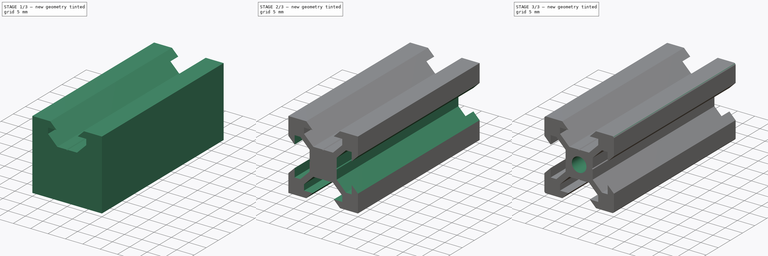
[diagram: build sequence overview — one tinted view per stage of 3, left to right]
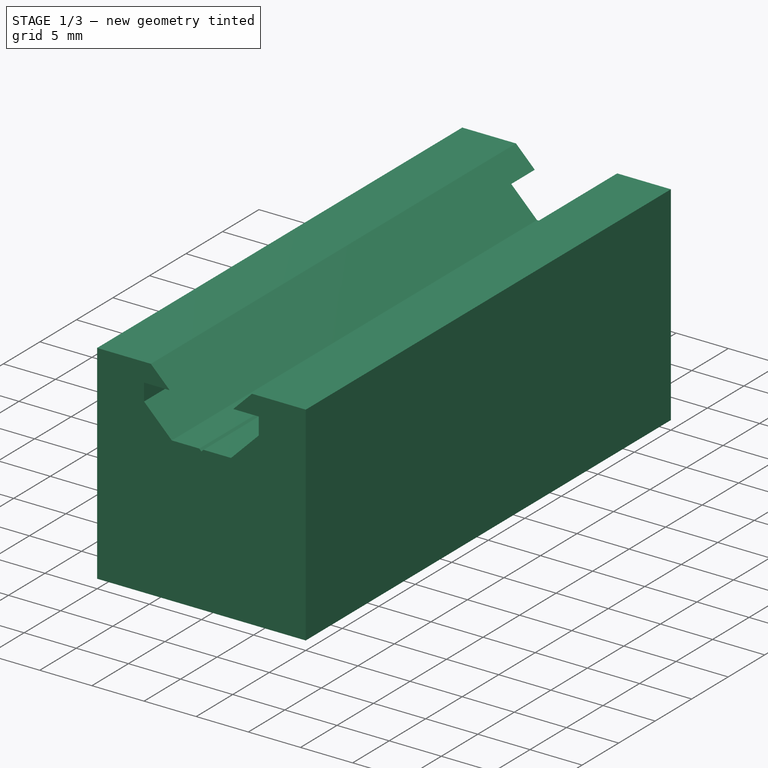
[diagram: stage 1 of 3 — iso view after this stage's code; geometry added in this stage tinted green]
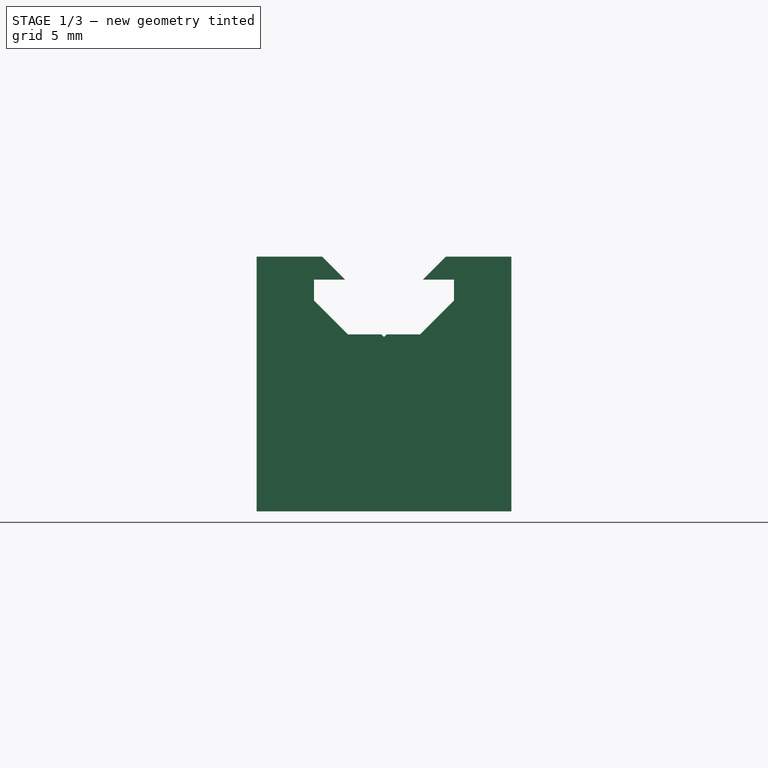
[diagram: stage 1 of 3 — front view after this stage's code; geometry added in this stage tinted green]
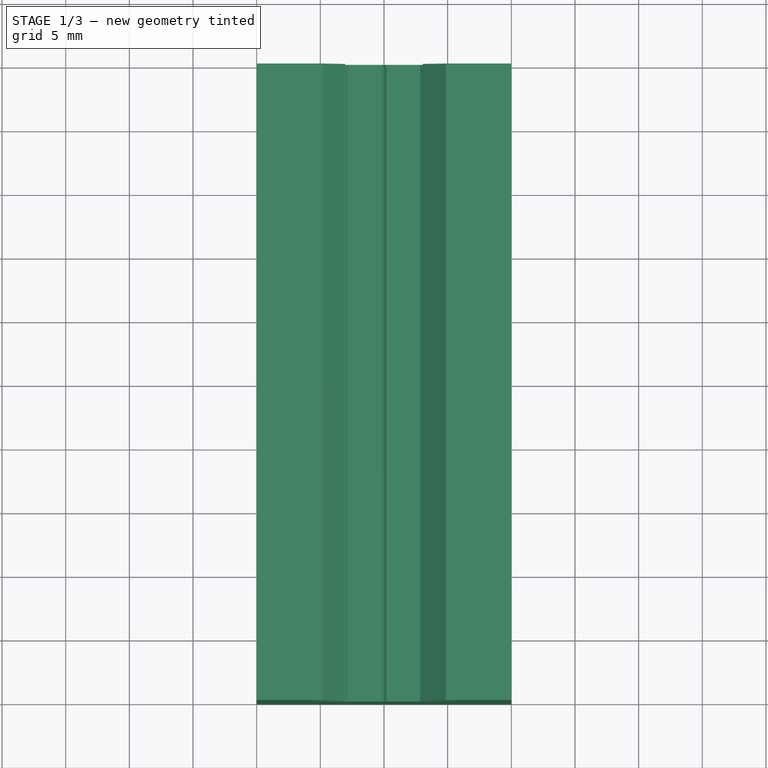
[diagram: stage 1 of 3 — top view after this stage's code; geometry added in this stage tinted green]
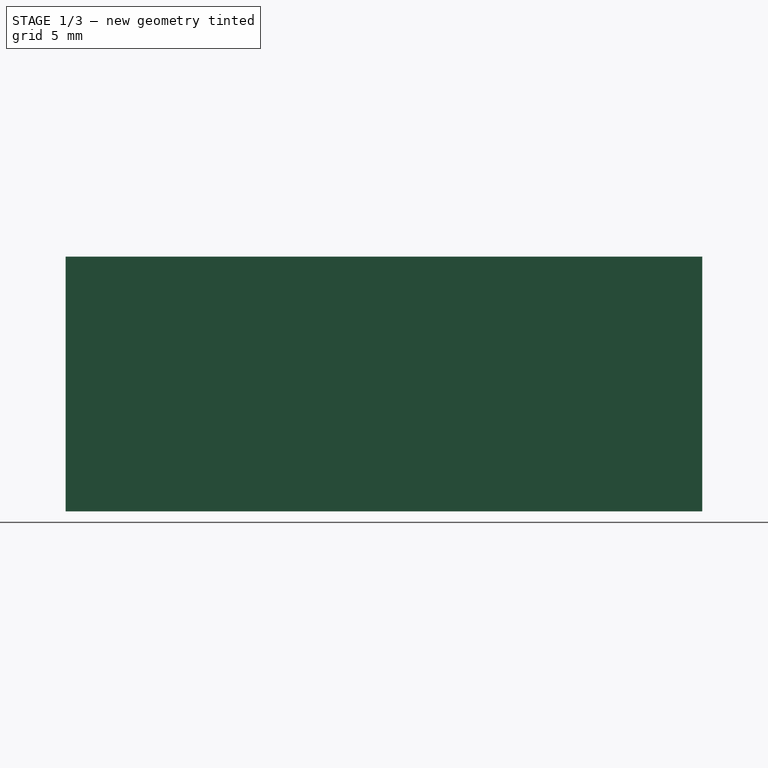
[diagram: stage 1 of 3 — right view after this stage's code; geometry added in this stage tinted green]
FCSTD DOCUMENT  (FreeCAD 2022.111R30764 (Git))
Label: 2020x50_V_slot_profile
License: Creative Commons Attribution
LicenseURL: http://creativecommons.org/licenses/by/4.0/
objects: Sketcher::SketchObject×3, PartDesign::Pocket×2, PartDesign::Pad×1, PartDesign::PolarPattern×1, PartDesign::Fillet×1, PartDesign::Body×1, App::Part×1
note: 19 computed .brp shape members not serialized (recipe doc carries the construction recipe); baked Part::Feature solids carry a one-line shape summary decoded from their .brp

FEATURE [Sketcher::SketchObject] Sketch
  FullyConstrained = true
  MapMode = 5
  Placement = pos=(0,0,0) rot=(1,0,0;1.5708rad)
  Support = -> [XZ_Plane]
  TreeRank = 18
  sketch-geometry (5):
    g0: LineSegment StartX=-10 StartY=10 StartZ=0 EndX=-10 EndY=-10 EndZ=0
    g1: LineSegment StartX=-10 StartY=-10 StartZ=0 EndX=10 EndY=-10 EndZ=0
    g2: LineSegment StartX=10 StartY=-10 StartZ=0 EndX=10 EndY=10 EndZ=0
    g3: LineSegment StartX=10 StartY=10 StartZ=0 EndX=-10 EndY=10 EndZ=0
    g4: GeomPoint [constr] X=-1e-16 Y=-1.03e-14 Z=0
  constraints (12):
    c: Coincident(g0,g1)
    c: Coincident(g1,g2)
    c: Coincident(g2,g3)
    c: Coincident(g3,g0)
    c: Horizontal(g1)
    c: Horizontal(g3)
    c: Vertical(g0)
    c: Vertical(g2)
    c: Symmetric(g1,g0,g4)
    c: Coincident(g4,g-1)
    c: Equal(g2,g1)
    c: DistanceX(g3,g3) = 20
FEATURE [PartDesign::Pad] Pad
  AddSubType = 0
  AlongSketchNormal = false
  CheckUpToFaceLimits = true
  ClaimChildren = false
  Direction = (0,-1,-2e-16)
  Fit = 0
  FitJoin = 0
  InnerFit = 0
  InnerFitJoin = 0
  InnerTaperAngle = 0
  InnerTaperAngleRev = 0
  Length = 50
  Length2 = 100
  Linearize = true
  NewSolid = false
  Placement = pos=(0,0,0) rot=(1,0,0;1.5708rad)
  Profile = -> Sketch
  Suppress = false
  TreeRank = 19
  Type = 0
  _ProfileBasedVersion = 1
FEATURE [Sketcher::SketchObject] Sketch001
  ExternalGeometry = -> [Pad]
  FullyConstrained = true
  MapMode = 5
  Placement = pos=(0,-50,-1.1e-14) rot=(1,0,0;1.5708rad)
  Support = -> [Pad]
  TreeRank = 20
  sketch-geometry (15):
    g0: LineSegment StartX=0 StartY=3.7 StartZ=0 EndX=0.2 EndY=3.9 EndZ=0
    g1: LineSegment StartX=0.2 StartY=3.9 StartZ=0 EndX=2.83934 EndY=3.9 EndZ=0
    g2: LineSegment StartX=2.83934 StartY=3.9 StartZ=0 EndX=5.5 EndY=6.56066 EndZ=0
    g3: LineSegment StartX=5.5 StartY=6.56066 StartZ=0 EndX=5.5 EndY=8.2 EndZ=0
    g4: LineSegment StartX=5.5 StartY=8.2 StartZ=0 EndX=3.05 EndY=8.2 EndZ=0
    g5: LineSegment StartX=3.05 StartY=8.2 StartZ=0 EndX=4.85 EndY=10 EndZ=0
    g6: LineSegment StartX=4.85 StartY=10 StartZ=0 EndX=-4.85 EndY=10 EndZ=0
    g7: LineSegment StartX=-4.85 StartY=10 StartZ=0 EndX=-3.05 EndY=8.2 EndZ=0
    g8: LineSegment StartX=-3.05 StartY=8.2 StartZ=0 EndX=-5.5 EndY=8.2 EndZ=0
    g9: LineSegment StartX=-5.5 StartY=8.2 StartZ=0 EndX=-5.5 EndY=6.56066 EndZ=0
    g10: LineSegment StartX=-5.5 StartY=6.56066 StartZ=0 EndX=-2.83934 EndY=3.9 EndZ=0
    g11: LineSegment StartX=-2.83934 StartY=3.9 StartZ=0 EndX=-0.2 EndY=3.9 EndZ=0
    g12: LineSegment StartX=-0.2 StartY=3.9 StartZ=0 EndX=0 EndY=3.7 EndZ=0
    g13: GeomPoint [constr] X=0 Y=10 Z=0
    g14: LineSegment [constr] StartX=-10 StartY=10 StartZ=0 EndX=0 EndY=0 EndZ=0
  constraints (42):
    c: PointOnObject(g0,g-2)
    c: Coincident(g0,g1)
    c: Horizontal(g1)
    c: Coincident(g1,g2)
    c: Coincident(g2,g3)
    c: Vertical(g3)
    c: Coincident(g3,g4)
    c: Horizontal(g4)
    c: Coincident(g4,g5)
    c: PointOnObject(g5,g-3)
    c: Coincident(g5,g6)
    c: PointOnObject(g6,g-3)
    c: Coincident(g6,g7)
    c: Coincident(g7,g8)
    c: Horizontal(g8)
    c: Coincident(g8,g9)
    c: Coincident(g9,g10)
    c: Coincident(g10,g11)
    c: Horizontal(g11)
    c: Coincident(g11,g12)
    c: Coincident(g12,g0)
    c: Equal(g0,g12)
    c: Equal(g1,g11)
    c: Horizontal(g0,g11)
    c: Equal(g10,g2)
    c: Equal(g3,g9)
    c: Equal(g5,g7)
    c: Horizontal(g4,g7)
    c: Equal(g8,g4)
    c: Symmetric(g5,g6,g13)
    c: PointOnObject(g13,g-2)
    c: DistanceX(g6,g6) = 9.7
    c: DistanceY(g7,g6) = 1.8
    c: DistanceX(g9,g2) = 11
    c: DistanceY(g-1,g0) = 3.7
    c: DistanceY(g-1,g1) = 3.9
    c: Angle(g2) = 0.785398
    c: Parallel(g5,g2)
    c: Parallel(g0,g2)
    c: Coincident(g14,g-3)
    c: Coincident(g14,g-1)
    c: Distance(g10,g14) = 0.75
FEATURE [PartDesign::Pocket] Pocket
  AddSubType = 1
  BaseFeature = -> Pad
  CheckUpToFaceLimits = true
  ClaimChildren = false
  Fit = 0
  FitJoin = 0
  InnerFit = 0
  InnerFitJoin = 0
  InnerTaperAngle = 0
  InnerTaperAngleRev = 0
  Length = 5
  Length2 = 100
  Linearize = true
  NewSolid = false
  Placement = pos=(0,0,0) rot=(1,0,0;1.5708rad)
  Profile = -> Sketch001
  Suppress = false
  TreeRank = 21
  Type = 2
  _ProfileBasedVersion = 1
  _Version = 1
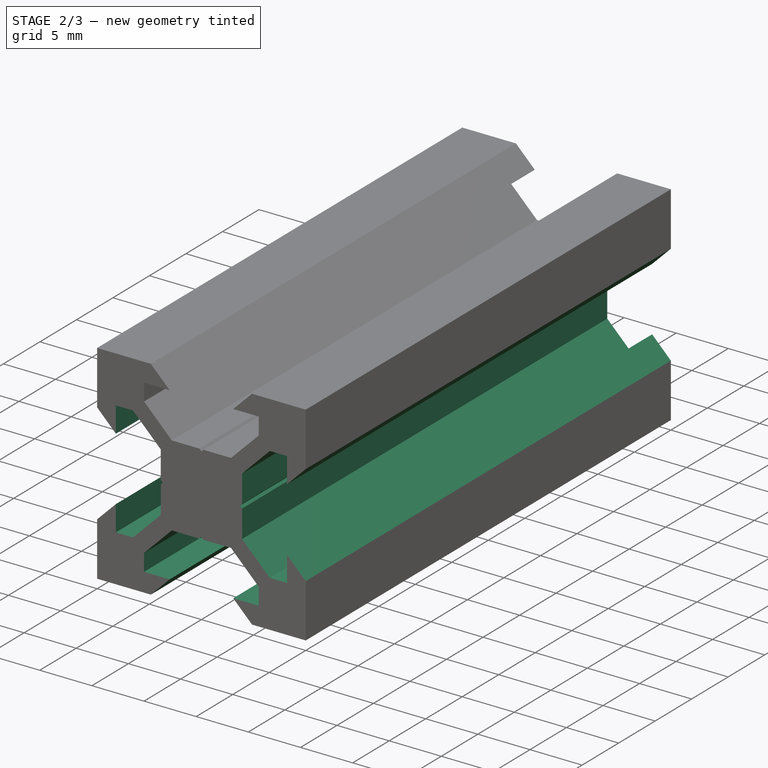
[diagram: stage 2 of 3 — iso view after this stage's code; geometry added in this stage tinted green]
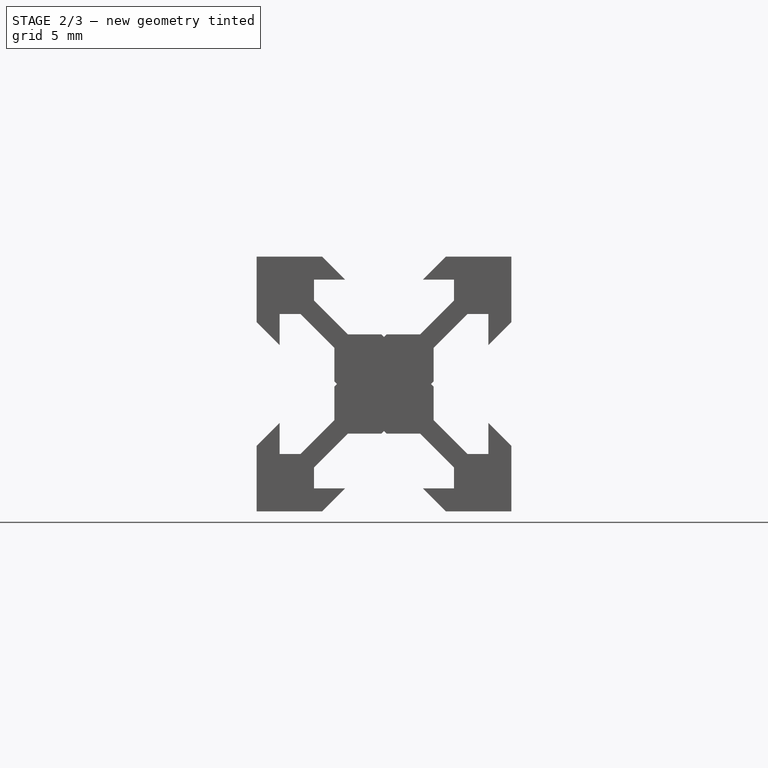
[diagram: stage 2 of 3 — front view after this stage's code; geometry added in this stage tinted green]
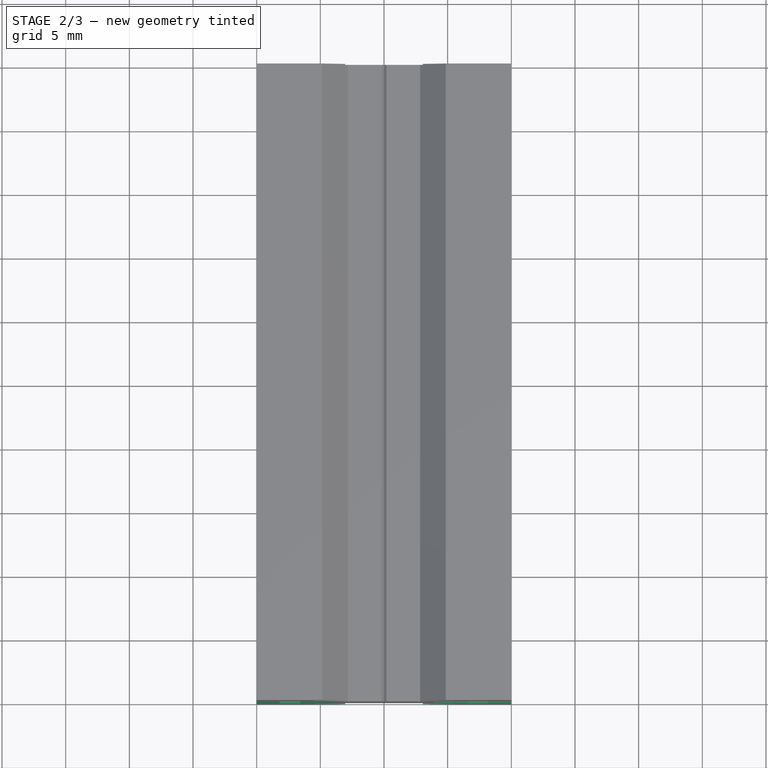
[diagram: stage 2 of 3 — top view after this stage's code; geometry added in this stage tinted green]
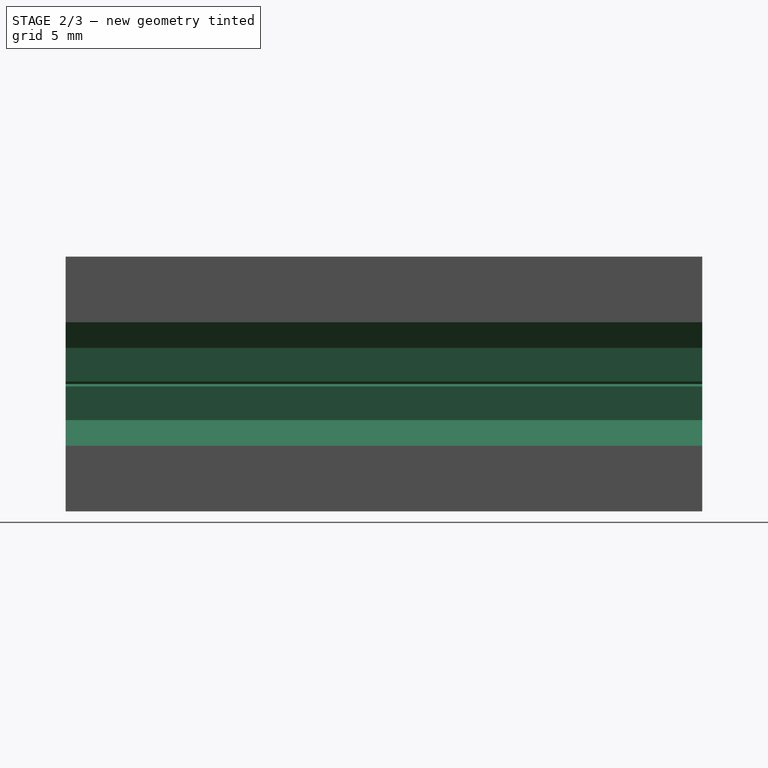
[diagram: stage 2 of 3 — right view after this stage's code; geometry added in this stage tinted green]
FEATURE [PartDesign::PolarPattern] PolarPattern
  AddSubType = 0
  Angle = 360
  Axis = -> Y_Axis
  BaseFeature = -> Pocket
  CopyShape = false
  NewSolid = false
  Occurrences = 4
  ParallelTransform = true
  Placement = pos=(0,0,0) rot=(1,0,0;1.5708rad)
  SubTransform = true
  Suppress = false
  TreeRank = 22
  _Version = 3
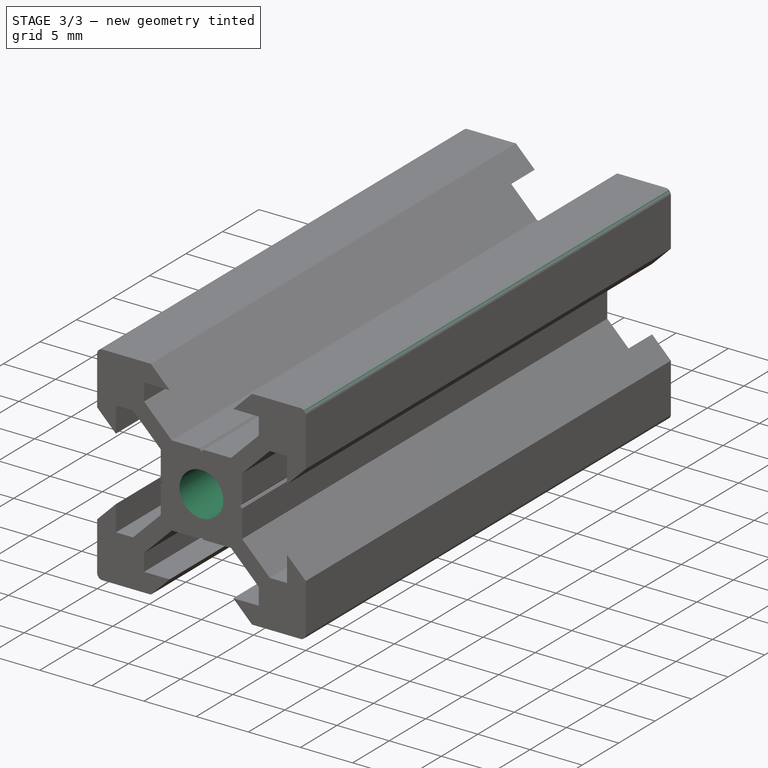
[diagram: stage 3 of 3 — iso view after this stage's code; geometry added in this stage tinted green]
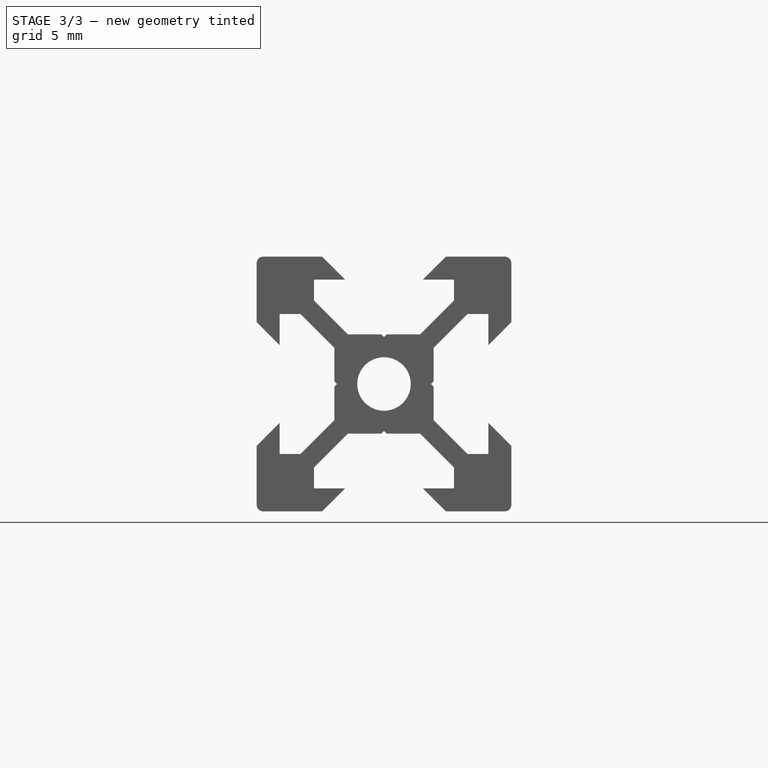
[diagram: stage 3 of 3 — front view after this stage's code; geometry added in this stage tinted green]
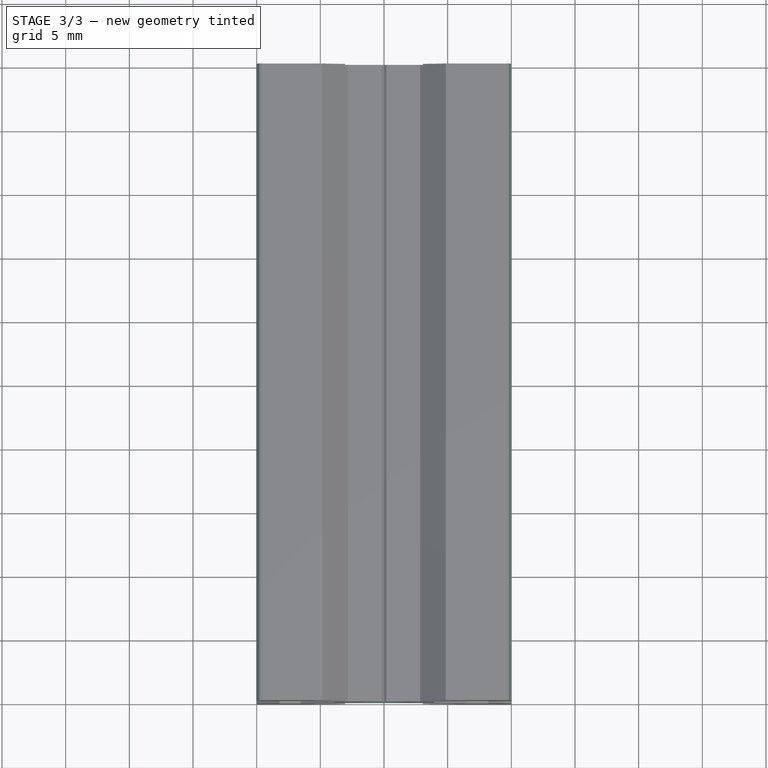
[diagram: stage 3 of 3 — top view after this stage's code; geometry added in this stage tinted green]
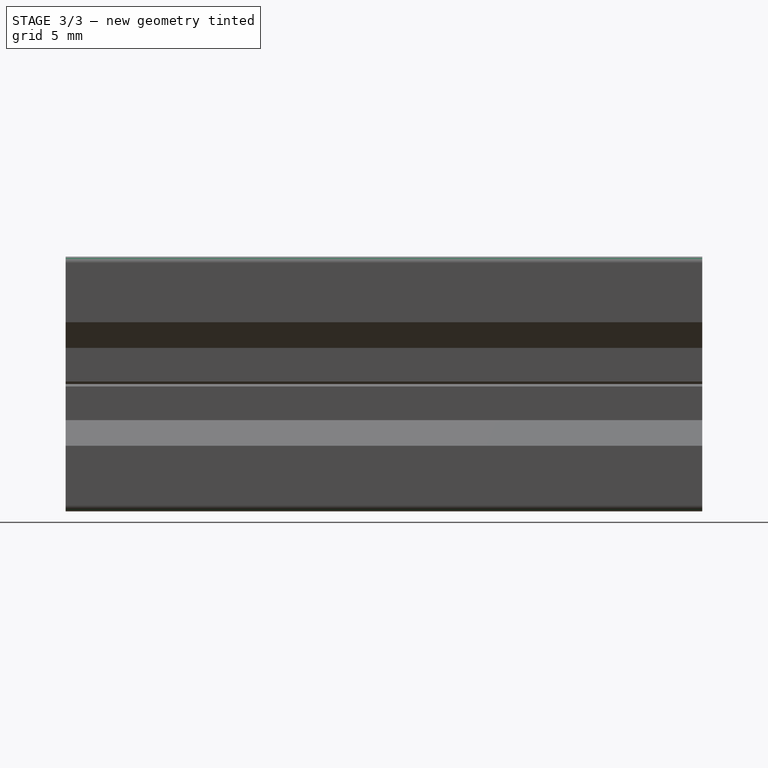
[diagram: stage 3 of 3 — right view after this stage's code; geometry added in this stage tinted green]
FEATURE [Sketcher::SketchObject] Sketch002
  FullyConstrained = true
  MapMode = 5
  Placement = pos=(0,0,0) rot=(-1,0,0;1.5708rad)
  Support = -> [PolarPattern]
  TreeRank = 23
  sketch-geometry (1):
    g0: Circle CenterX=0 CenterY=0 CenterZ=0 NormalX=0 NormalY=0 NormalZ=1 AngleXU=0 Radius=2.1
  constraints (2):
    c: Coincident(g0,g-1)
    c: Diameter(g0) = 4.2
FEATURE [PartDesign::Pocket] Pocket001
  AddSubType = 1
  BaseFeature = -> PolarPattern
  CheckUpToFaceLimits = true
  ClaimChildren = false
  Fit = 0
  FitJoin = 0
  InnerFit = 0
  InnerFitJoin = 0
  InnerTaperAngle = 0
  InnerTaperAngleRev = 0
  Length = 5
  Length2 = 100
  Linearize = true
  NewSolid = false
  Placement = pos=(0,0,0) rot=(1,0,0;1.5708rad)
  Profile = -> Sketch002
  Suppress = false
  TreeRank = 24
  Type = 2
  _ProfileBasedVersion = 1
  _Version = 1
FEATURE [PartDesign::Fillet] Fillet
  AddSubType = 0
  Base = -> Pocket001 [Edge4,Edge143,Edge170,Edge142]
  BaseFeature = -> Pocket001
  NewSolid = false
  Placement = pos=(0,0,0) rot=(1,0,0;1.5708rad)
  Radius = 0.5
  SupportTransform = false
  Suppress = false
  TreeRank = 25
FEATURE [PartDesign::Body] Body
  AutoGroupSolids = false
  ExportMode = 0
  Group = -> [Sketch,Pad,Sketch001,Pocket,PolarPattern,Sketch002,Pocket001,Fillet]
  Origin = -> Origin001
  Tip = -> Fillet
  TreeRank = 17
  _ExportChildren = -> [Pad,Pocket,PolarPattern,Pocket001,Fillet]
  _GroupVersion = 1
FEATURE [App::Part] Part
  ExportMode = 1
  Group = -> [Body]
  Origin = -> Origin
  TreeRank = 5
  _ExportChildren = -> [Body]
  _GroupVersion = 1
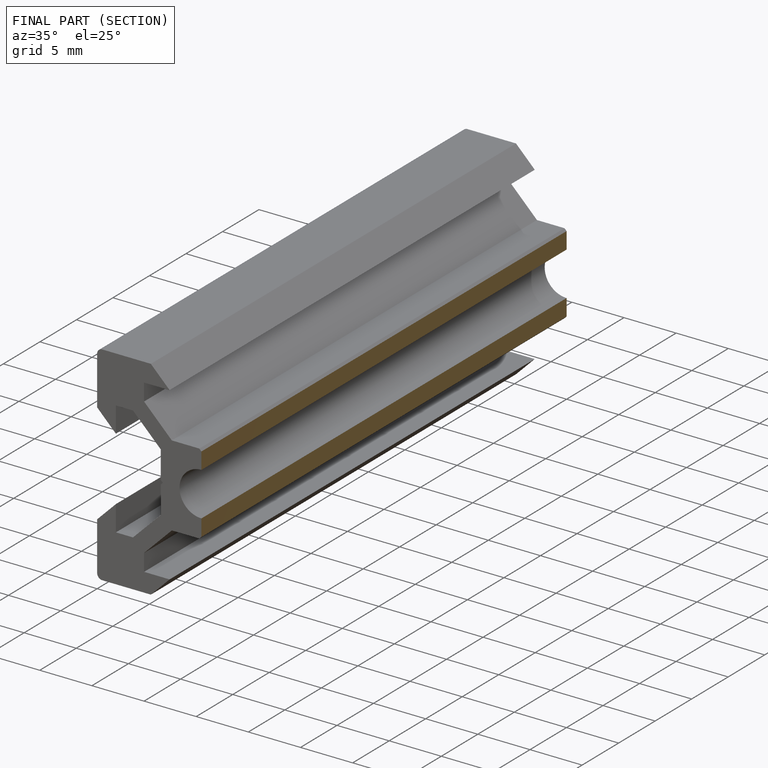
[diagram: finished part — half-section view (interior)]
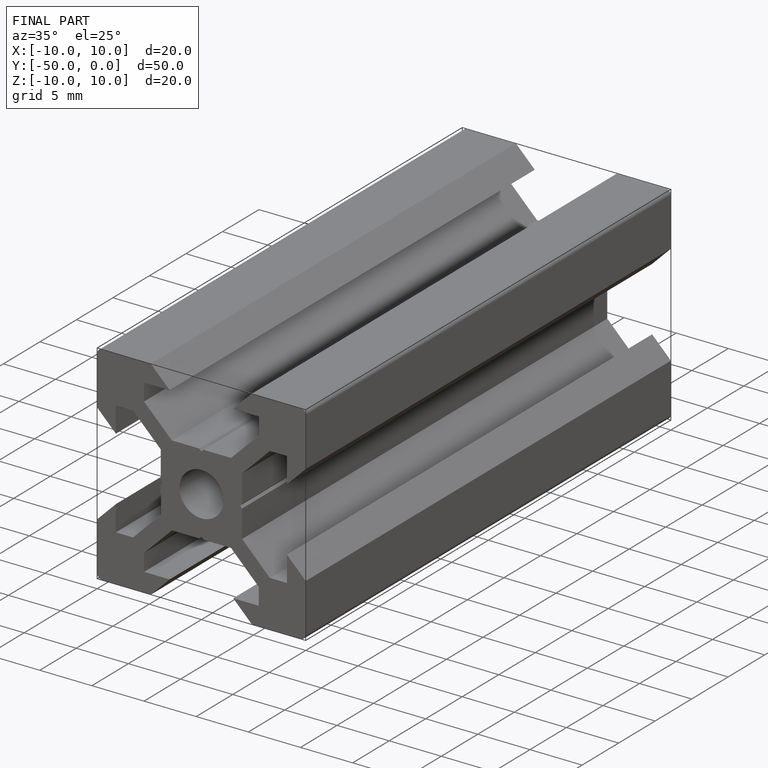
[diagram: finished part — iso view with bounding-box wireframe]
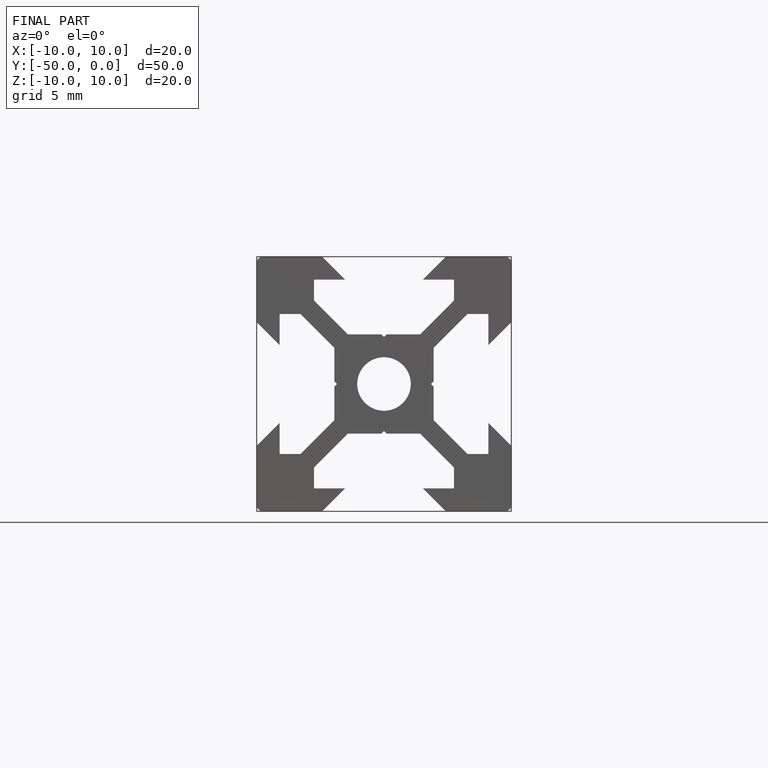
[diagram: finished part — front view with bounding-box wireframe]
